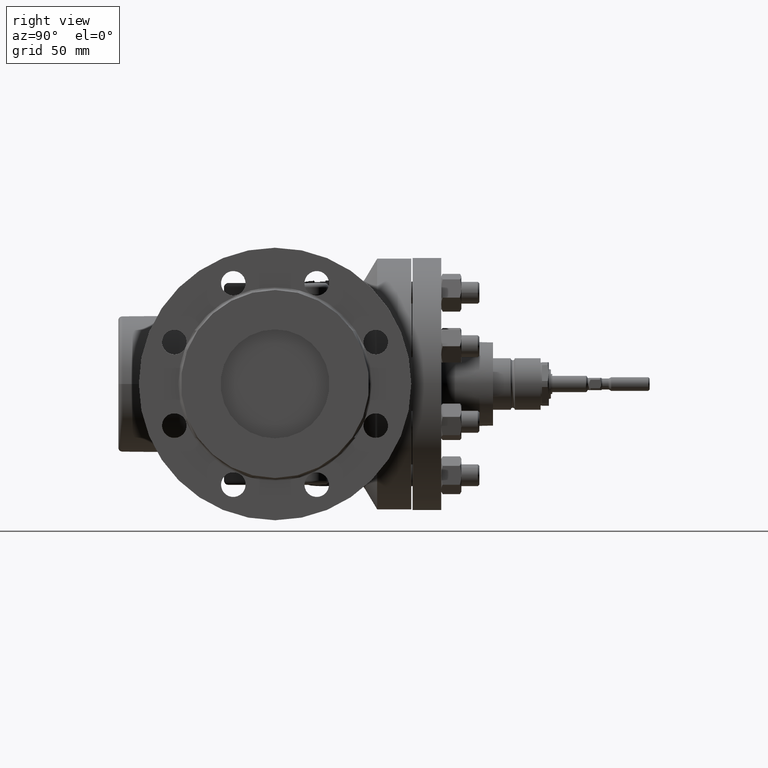
[diagram: clean part render]
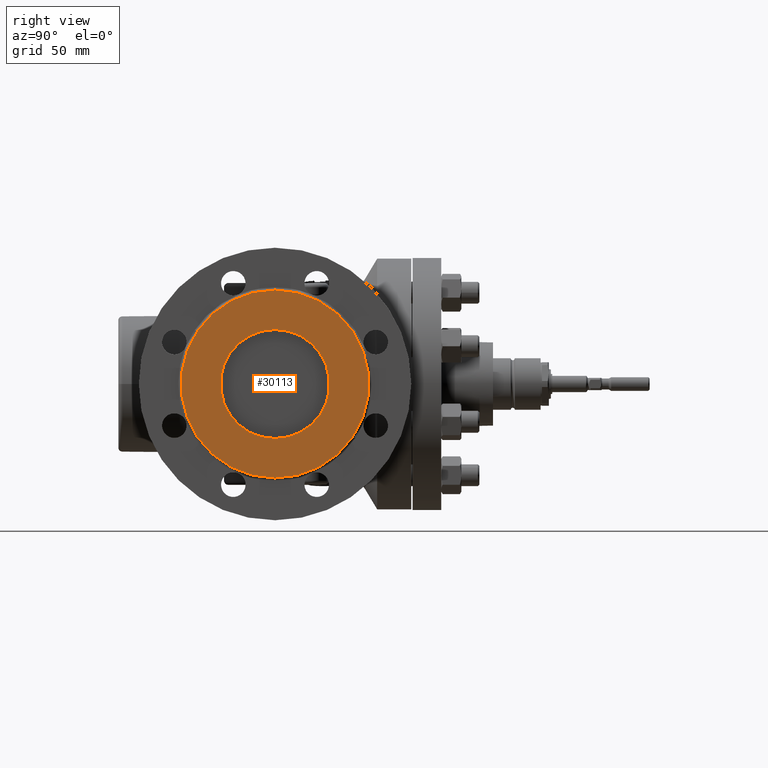
[diagram: same view with one face highlighted and labeled with its STEP entity id]
A machine part, right view. The second image highlights one B-rep face of the part: STEP entity #30113.
In plain terms, the highlighted planar face has unit normal (1, 0, -0).
Its self-contained STEP definition (entity closure, byte-faithful):
#2292 = DIRECTION ( 'NONE',  ( 1.000000000000000000, 0.0000000000000000000, 0.0000000000000000000 ) ) ;
#14452 = DIRECTION ( 'NONE',  ( 1.000000000000000000, 0.0000000000000000000, -0.0000000000000000000 ) ) ;
#20063 = CARTESIAN_POINT ( 'NONE',  ( 155.0000000000000000, 0.0000000000000000000, 68.99999999999998600 ) ) ;
#30113 = ADVANCED_FACE ( 'NONE', ( #151977, #111443 ), #100499, .T. ) ;
#38623 = ORIENTED_EDGE ( 'NONE', *, *, #209213, .T. ) ;
#39722 = CIRCLE ( 'NONE', #111706, 40.00000000000000000 ) ;
#48201 = EDGE_CURVE ( 'NONE', #219090, #161814, #39722, .T. ) ;
#51282 = CARTESIAN_POINT ( 'NONE',  ( 155.0000000000000000, 0.0000000000000000000, 0.0000000000000000000 ) ) ;
#51738 = AXIS2_PLACEMENT_3D ( 'NONE', #95339, #216090, #112709 ) ;
#68054 = CARTESIAN_POINT ( 'NONE',  ( 155.0000000000000000, 4.898587196589413000E-015, 40.00000000000000000 ) ) ;
#68650 = DIRECTION ( 'NONE',  ( 0.0000000000000000000, 0.0000000000000000000, 1.000000000000000000 ) ) ;
#75327 = VERTEX_POINT ( 'NONE', #20063 ) ;
#86047 = ORIENTED_EDGE ( 'NONE', *, *, #48201, .T. ) ;
#89002 = CARTESIAN_POINT ( 'NONE',  ( 155.0000000000000000, 0.0000000000000000000, 0.0000000000000000000 ) ) ;
#95339 = CARTESIAN_POINT ( 'NONE',  ( 155.0000000000000000, 0.0000000000000000000, 0.0000000000000000000 ) ) ;
#96289 = ORIENTED_EDGE ( 'NONE', *, *, #179471, .T. ) ;
#98036 = CIRCLE ( 'NONE', #51738, 40.00000000000000000 ) ;
#98999 = CARTESIAN_POINT ( 'NONE',  ( 155.0000000000000000, 0.0000000000000000000, 0.0000000000000000000 ) ) ;
#100499 = PLANE ( 'NONE',  #153065 ) ;
#105733 = CARTESIAN_POINT ( 'NONE',  ( 155.0000000000000000, 0.0000000000000000000, 0.0000000000000000000 ) ) ;
#106383 = DIRECTION ( 'NONE',  ( 0.0000000000000000000, 0.0000000000000000000, -1.000000000000000000 ) ) ;
#107104 = EDGE_CURVE ( 'NONE', #75327, #153868, #196870, .T. ) ;
#111443 = FACE_BOUND ( 'NONE', #178120, .T. ) ;
#111706 = AXIS2_PLACEMENT_3D ( 'NONE', #51282, #172035, #68650 ) ;
#112709 = DIRECTION ( 'NONE',  ( 0.0000000000000000000, 0.0000000000000000000, 1.000000000000000000 ) ) ;
#123078 = DIRECTION ( 'NONE',  ( 0.0000000000000000000, 0.0000000000000000000, -1.000000000000000000 ) ) ;
#128240 = AXIS2_PLACEMENT_3D ( 'NONE', #89002, #209767, #106383 ) ;
#135174 = DIRECTION ( 'NONE',  ( 0.0000000000000000000, 0.0000000000000000000, 1.000000000000000000 ) ) ;
#151523 = ORIENTED_EDGE ( 'NONE', *, *, #107104, .T. ) ;
#151977 = FACE_OUTER_BOUND ( 'NONE', #219603, .T. ) ;
#153065 = AXIS2_PLACEMENT_3D ( 'NONE', #98999, #14452, #135174 ) ;
#153868 = VERTEX_POINT ( 'NONE', #197998 ) ;
#155336 = CIRCLE ( 'NONE', #161150, 68.99999999999998600 ) ;
#161150 = AXIS2_PLACEMENT_3D ( 'NONE', #105733, #2292, #123078 ) ;
#161814 = VERTEX_POINT ( 'NONE', #188360 ) ;
#172035 = DIRECTION ( 'NONE',  ( -1.000000000000000000, -0.0000000000000000000, -0.0000000000000000000 ) ) ;
#178120 = EDGE_LOOP ( 'NONE', ( #96289, #86047 ) ) ;
#179471 = EDGE_CURVE ( 'NONE', #161814, #219090, #98036, .T. ) ;
#188360 = CARTESIAN_POINT ( 'NONE',  ( 155.0000000000000000, 0.0000000000000000000, -40.00000000000000000 ) ) ;
#196870 = CIRCLE ( 'NONE', #128240, 68.99999999999998600 ) ;
#197998 = CARTESIAN_POINT ( 'NONE',  ( 155.0000000000000000, 8.450062914116734700E-015, -68.99999999999998600 ) ) ;
#209213 = EDGE_CURVE ( 'NONE', #153868, #75327, #155336, .T. ) ;
#209767 = DIRECTION ( 'NONE',  ( 1.000000000000000000, 0.0000000000000000000, 0.0000000000000000000 ) ) ;
#216090 = DIRECTION ( 'NONE',  ( -1.000000000000000000, -0.0000000000000000000, -0.0000000000000000000 ) ) ;
#219090 = VERTEX_POINT ( 'NONE', #68054 ) ;
#219603 = EDGE_LOOP ( 'NONE', ( #151523, #38623 ) ) ;